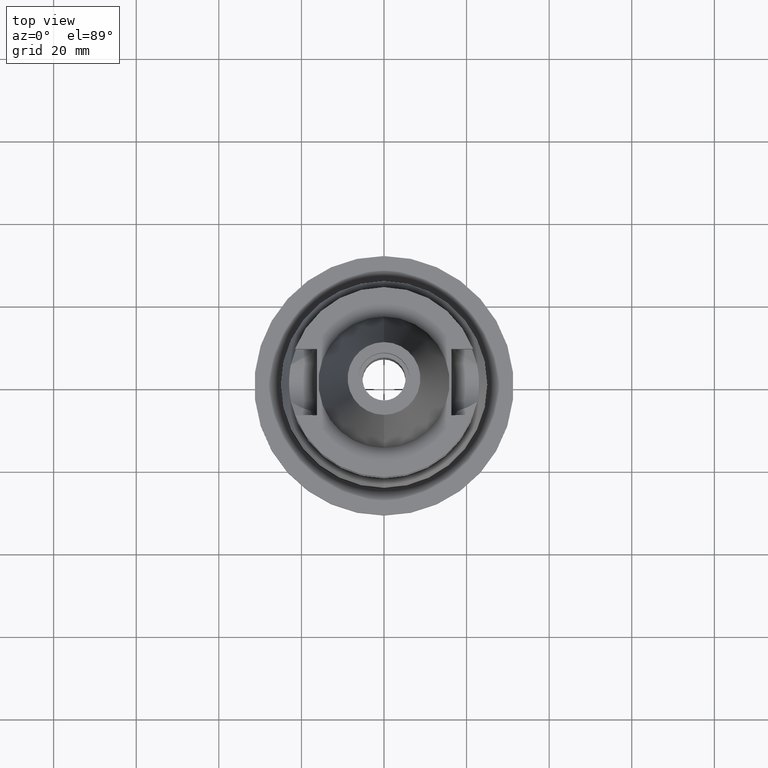
[diagram: clean part render]
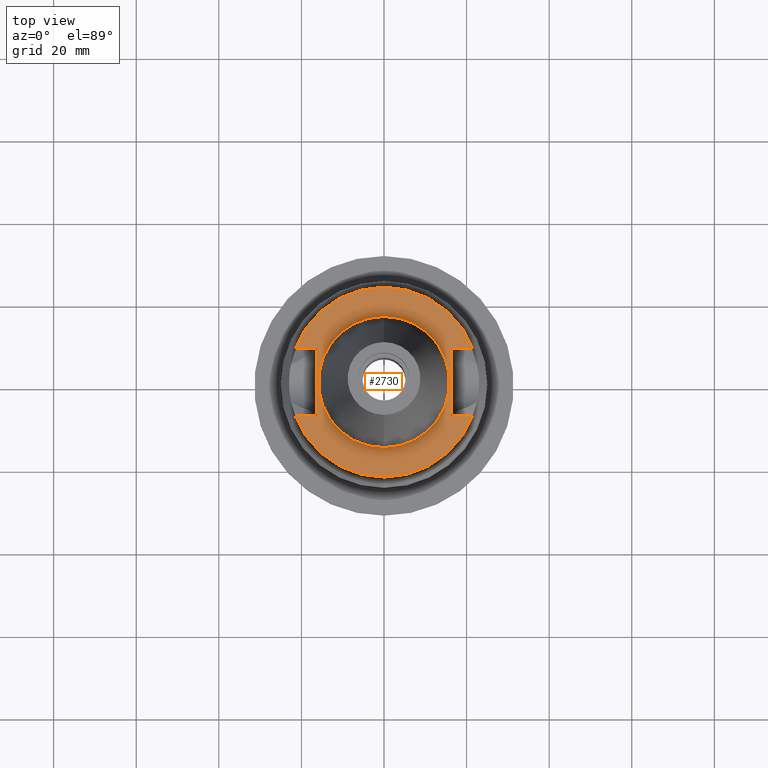
[diagram: same view with one face highlighted and labeled with its STEP entity id]
A machine part, top view. The second image highlights one B-rep face of the part: STEP entity #2730.
In plain terms, the highlighted planar face has unit normal (0, 0, -1).
Its self-contained STEP definition (entity closure, byte-faithful):
#94=DIRECTION('',(0.E0,1.E0,0.E0));
#95=VECTOR('',#94,1.61E1);
#96=CARTESIAN_POINT('',(-1.63E1,-8.05E0,-2.E0));
#97=LINE('',#96,#95);
#101=DIRECTION('',(-1.E0,9.347030801892E-14,0.E0));
#102=VECTOR('',#101,5.245243094473E0);
#103=CARTESIAN_POINT('',(-1.63E1,8.05E0,-2.E0));
#104=LINE('',#103,#102);
#108=CARTESIAN_POINT('',(0.E0,1.911306259429E-14,-2.E0));
#109=DIRECTION('',(0.E0,0.E0,-1.E0));
#110=DIRECTION('',(-9.367496997598E-1,3.5E-1,0.E0));
#111=AXIS2_PLACEMENT_3D('',#108,#109,#110);
#116=CARTESIAN_POINT('',(0.E0,1.911306259429E-14,-2.E0));
#117=DIRECTION('',(0.E0,0.E0,-1.E0));
#118=DIRECTION('',(0.E0,1.E0,0.E0));
#119=AXIS2_PLACEMENT_3D('',#116,#117,#118);
#124=DIRECTION('',(0.E0,-1.E0,0.E0));
#125=VECTOR('',#124,1.61E1);
#126=CARTESIAN_POINT('',(1.63E1,8.05E0,-2.E0));
#127=LINE('',#126,#125);
#131=DIRECTION('',(1.E0,-9.347030801892E-14,0.E0));
#132=VECTOR('',#131,5.245243094473E0);
#133=CARTESIAN_POINT('',(1.63E1,-8.05E0,-2.E0));
#134=LINE('',#133,#132);
#138=CARTESIAN_POINT('',(0.E0,1.911306259429E-14,-2.E0));
#139=DIRECTION('',(0.E0,0.E0,-1.E0));
#140=DIRECTION('',(9.367496997598E-1,-3.5E-1,0.E0));
#141=AXIS2_PLACEMENT_3D('',#138,#139,#140);
#146=CARTESIAN_POINT('',(0.E0,1.911306259429E-14,-2.E0));
#147=DIRECTION('',(0.E0,0.E0,-1.E0));
#148=DIRECTION('',(0.E0,-1.E0,0.E0));
#149=AXIS2_PLACEMENT_3D('',#146,#147,#148);
#154=CARTESIAN_POINT('',(0.E0,1.911306259429E-14,-2.E0));
#155=DIRECTION('',(0.E0,0.E0,1.E0));
#156=DIRECTION('',(0.E0,-1.E0,0.E0));
#157=AXIS2_PLACEMENT_3D('',#154,#155,#156);
#162=CARTESIAN_POINT('',(0.E0,1.911306259429E-14,-2.E0));
#163=DIRECTION('',(0.E0,0.E0,1.E0));
#164=DIRECTION('',(0.E0,1.E0,0.E0));
#165=AXIS2_PLACEMENT_3D('',#162,#163,#164);
#210=DIRECTION('',(-1.E0,-9.313164748262E-14,0.E0));
#211=VECTOR('',#210,5.245243094473E0);
#212=CARTESIAN_POINT('',(-1.63E1,-8.05E0,-2.E0));
#213=LINE('',#212,#211);
#333=DIRECTION('',(1.E0,9.380896855522E-14,0.E0));
#334=VECTOR('',#333,5.245243094473E0);
#335=CARTESIAN_POINT('',(1.63E1,8.05E0,-2.E0));
#336=LINE('',#335,#334);
#2555=CARTESIAN_POINT('',(-1.63E1,-8.05E0,-2.E0));
#2556=VERTEX_POINT('',#2555);
#2557=CARTESIAN_POINT('',(-2.154524309447E1,-8.05E0,-2.E0));
#2558=VERTEX_POINT('',#2557);
#2559=CARTESIAN_POINT('',(-1.63E1,8.05E0,-2.E0));
#2560=VERTEX_POINT('',#2559);
#2561=CARTESIAN_POINT('',(-2.154524309447E1,8.05E0,-2.E0));
#2562=VERTEX_POINT('',#2561);
#2563=CARTESIAN_POINT('',(0.E0,2.3E1,-2.E0));
#2564=CARTESIAN_POINT('',(2.154524309447E1,8.05E0,-2.E0));
#2565=VERTEX_POINT('',#2563);
#2566=VERTEX_POINT('',#2564);
#2567=CARTESIAN_POINT('',(1.63E1,8.05E0,-2.E0));
#2568=VERTEX_POINT('',#2567);
#2569=CARTESIAN_POINT('',(1.63E1,-8.05E0,-2.E0));
#2570=VERTEX_POINT('',#2569);
#2571=CARTESIAN_POINT('',(2.154524309447E1,-8.05E0,-2.E0));
#2572=VERTEX_POINT('',#2571);
#2573=CARTESIAN_POINT('',(0.E0,-2.3E1,-2.E0));
#2574=VERTEX_POINT('',#2573);
#2575=CARTESIAN_POINT('',(0.E0,-1.5875E1,-2.E0));
#2576=CARTESIAN_POINT('',(0.E0,1.5875E1,-2.E0));
#2577=VERTEX_POINT('',#2575);
#2578=VERTEX_POINT('',#2576);
#2699=CARTESIAN_POINT('',(0.E0,1.200153863164E-14,-2.E0));
#2700=DIRECTION('',(0.E0,0.E0,-1.E0));
#2701=DIRECTION('',(0.E0,-1.E0,0.E0));
#2702=AXIS2_PLACEMENT_3D('',#2699,#2700,#2701);
#2703=PLANE('',#2702);
#2705=ORIENTED_EDGE('',*,*,#2704,.T.);
#2707=ORIENTED_EDGE('',*,*,#2706,.T.);
#2709=ORIENTED_EDGE('',*,*,#2708,.T.);
#2711=ORIENTED_EDGE('',*,*,#2710,.T.);
#2713=ORIENTED_EDGE('',*,*,#2712,.F.);
#2715=ORIENTED_EDGE('',*,*,#2714,.T.);
#2717=ORIENTED_EDGE('',*,*,#2716,.T.);
#2719=ORIENTED_EDGE('',*,*,#2718,.T.);
#2721=ORIENTED_EDGE('',*,*,#2720,.T.);
#2723=ORIENTED_EDGE('',*,*,#2722,.F.);
#2724=EDGE_LOOP('',(#2705,#2707,#2709,#2711,#2713,#2715,#2717,#2719,#2721,
#2723));
#2725=FACE_OUTER_BOUND('',#2724,.F.);
#2726=ORIENTED_EDGE('',*,*,#2678,.T.);
#2727=ORIENTED_EDGE('',*,*,#2694,.T.);
#2728=EDGE_LOOP('',(#2726,#2727));
#2729=FACE_BOUND('',#2728,.F.);
#112=CIRCLE('',#111,2.3E1);
#120=CIRCLE('',#119,2.3E1);
#142=CIRCLE('',#141,2.3E1);
#150=CIRCLE('',#149,2.3E1);
#158=CIRCLE('',#157,1.5875E1);
#166=CIRCLE('',#165,1.5875E1);
#2678=EDGE_CURVE('',#2577,#2578,#158,.T.);
#2694=EDGE_CURVE('',#2578,#2577,#166,.T.);
#2704=EDGE_CURVE('',#2556,#2560,#97,.T.);
#2706=EDGE_CURVE('',#2560,#2562,#104,.T.);
#2708=EDGE_CURVE('',#2562,#2565,#112,.T.);
#2710=EDGE_CURVE('',#2565,#2566,#120,.T.);
#2712=EDGE_CURVE('',#2568,#2566,#336,.T.);
#2714=EDGE_CURVE('',#2568,#2570,#127,.T.);
#2716=EDGE_CURVE('',#2570,#2572,#134,.T.);
#2718=EDGE_CURVE('',#2572,#2574,#142,.T.);
#2720=EDGE_CURVE('',#2574,#2558,#150,.T.);
#2722=EDGE_CURVE('',#2556,#2558,#213,.T.);
#2730=ADVANCED_FACE('',(#2725,#2729),#2703,.F.);